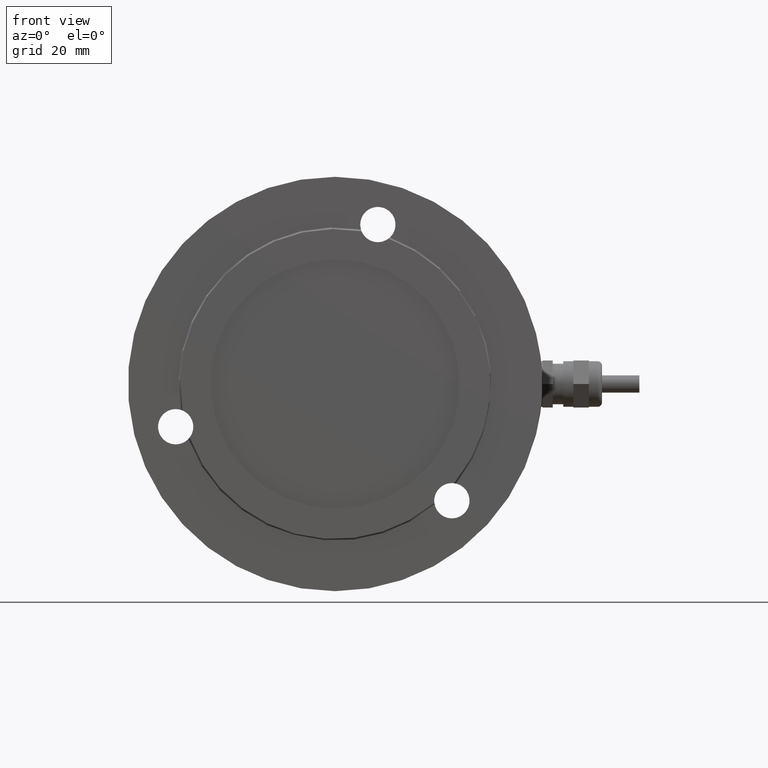
[diagram: clean part render]
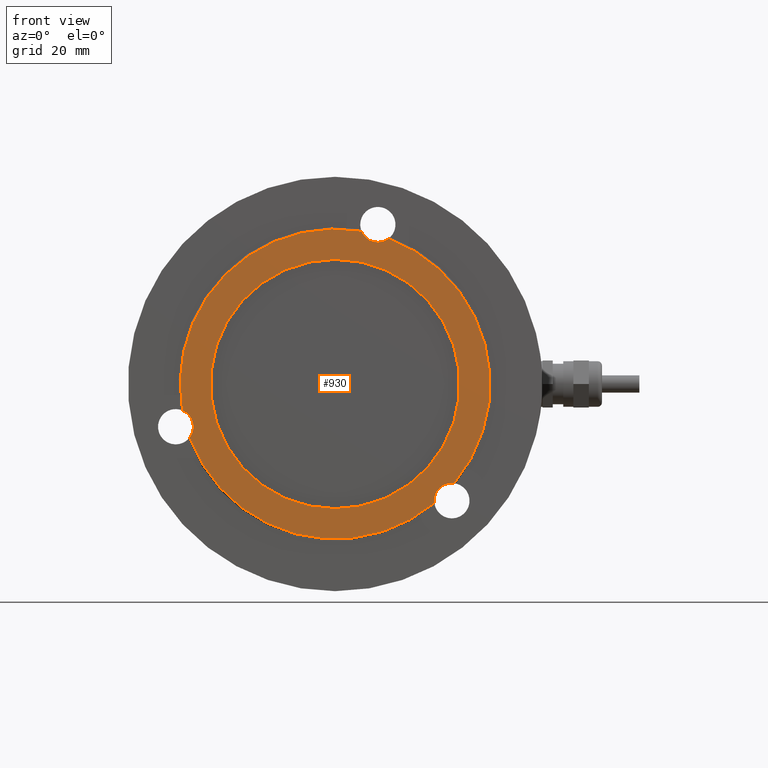
[diagram: same view with one face highlighted and labeled with its STEP entity id]
A machine part, front view. The second image highlights one B-rep face of the part: STEP entity #930.
In plain terms, the highlighted planar face has unit normal (0, -1, 0).
Its self-contained STEP definition (entity closure, byte-faithful):
#36=PLANE('',#1063);
#56=FACE_BOUND('',#172,.T.);
#114=FACE_OUTER_BOUND('',#171,.T.);
#171=EDGE_LOOP('',(#821,#822,#823,#824,#825,#826,#827));
#172=EDGE_LOOP('',(#828,#829));
#318=CIRCLE('',#983,5.25);
#320=CIRCLE('',#986,5.25);
#323=CIRCLE('',#989,5.25);
#324=CIRCLE('',#991,5.25);
#329=CIRCLE('',#997,46.);
#337=CIRCLE('',#1007,37.);
#338=CIRCLE('',#1008,37.);
#365=CIRCLE('',#1064,46.);
#366=CIRCLE('',#1065,46.);
#396=VERTEX_POINT('',#1476);
#397=VERTEX_POINT('',#1489);
#400=VERTEX_POINT('',#1507);
#401=VERTEX_POINT('',#1520);
#404=VERTEX_POINT('',#1527);
#405=VERTEX_POINT('',#1542);
#406=VERTEX_POINT('',#1543);
#418=VERTEX_POINT('',#1597);
#419=VERTEX_POINT('',#1599);
#502=EDGE_CURVE('',#397,#396,#318,.T.);
#506=EDGE_CURVE('',#401,#400,#320,.T.);
#510=EDGE_CURVE('',#404,#401,#323,.T.);
#512=EDGE_CURVE('',#405,#406,#324,.T.);
#520=EDGE_CURVE('',#396,#405,#329,.T.);
#530=EDGE_CURVE('',#418,#419,#337,.T.);
#531=EDGE_CURVE('',#419,#418,#338,.T.);
#600=EDGE_CURVE('',#406,#404,#365,.T.);
#601=EDGE_CURVE('',#400,#397,#366,.T.);
#821=ORIENTED_EDGE('',*,*,#502,.T.);
#822=ORIENTED_EDGE('',*,*,#520,.T.);
#823=ORIENTED_EDGE('',*,*,#512,.T.);
#824=ORIENTED_EDGE('',*,*,#600,.T.);
#825=ORIENTED_EDGE('',*,*,#510,.T.);
#826=ORIENTED_EDGE('',*,*,#506,.T.);
#827=ORIENTED_EDGE('',*,*,#601,.T.);
#828=ORIENTED_EDGE('',*,*,#531,.F.);
#829=ORIENTED_EDGE('',*,*,#530,.F.);
#930=ADVANCED_FACE('',(#114,#56),#36,.T.);
#983=AXIS2_PLACEMENT_3D('',#1490,#1144,#1145);
#986=AXIS2_PLACEMENT_3D('',#1521,#1150,#1151);
#989=AXIS2_PLACEMENT_3D('',#1528,#1157,#1158);
#991=AXIS2_PLACEMENT_3D('',#1544,#1161,#1162);
#997=AXIS2_PLACEMENT_3D('',#1580,#1174,#1175);
#1007=AXIS2_PLACEMENT_3D('',#1600,#1196,#1197);
#1008=AXIS2_PLACEMENT_3D('',#1601,#1198,#1199);
#1063=AXIS2_PLACEMENT_3D('',#1774,#1350,#1351);
#1064=AXIS2_PLACEMENT_3D('',#1775,#1352,#1353);
#1065=AXIS2_PLACEMENT_3D('',#1776,#1354,#1355);
#1144=DIRECTION('center_axis',(0.,1.,0.));
#1145=DIRECTION('ref_axis',(0.,0.,1.));
#1150=DIRECTION('center_axis',(0.,1.,0.));
#1151=DIRECTION('ref_axis',(0.,0.,1.));
#1157=DIRECTION('center_axis',(0.,1.,0.));
#1158=DIRECTION('ref_axis',(0.,0.,1.));
#1161=DIRECTION('center_axis',(0.,1.,0.));
#1162=DIRECTION('ref_axis',(0.,0.,1.));
#1174=DIRECTION('center_axis',(0.,-1.,0.));
#1175=DIRECTION('ref_axis',(0.,0.,-1.));
#1196=DIRECTION('center_axis',(0.,-1.,0.));
#1197=DIRECTION('ref_axis',(0.,0.,-1.));
#1198=DIRECTION('center_axis',(0.,-1.,0.));
#1199=DIRECTION('ref_axis',(0.,0.,-1.));
#1350=DIRECTION('center_axis',(0.,-1.,0.));
#1351=DIRECTION('ref_axis',(0.,0.,-1.));
#1352=DIRECTION('center_axis',(0.,-1.,0.));
#1353=DIRECTION('ref_axis',(0.,0.,-1.));
#1354=DIRECTION('center_axis',(0.,-1.,0.));
#1355=DIRECTION('ref_axis',(0.,0.,-1.));
#1476=CARTESIAN_POINT('',(-43.1703148518028,0.,-15.884706972312));
#1489=CARTESIAN_POINT('',(-45.3289428371904,0.,-7.82859765620411));
#1490=CARTESIAN_POINT('Origin',(-47.3303654881639,0.,-12.6821332100216));
#1507=CARTESIAN_POINT('',(7.82859765620867,0.,45.3289428371896));
#1520=CARTESIAN_POINT('',(12.6821332100254,0.,42.0803654881648));
#1521=CARTESIAN_POINT('Origin',(12.6821332100254,0.,47.3303654881648));
#1527=CARTESIAN_POINT('',(15.8847069723138,0.,43.1703148518021));
#1528=CARTESIAN_POINT('Origin',(12.6821332100254,0.,47.3303654881648));
#1542=CARTESIAN_POINT('',(29.444235864877,0.,-35.3417171955961));
#1543=CARTESIAN_POINT('',(35.341717195596,0.,-29.4442358648771));
#1544=CARTESIAN_POINT('Origin',(34.6482322781408,0.,-34.6482322781409));
#1580=CARTESIAN_POINT('Origin',(0.,0.,0.));
#1597=CARTESIAN_POINT('',(-4.53119315684521E-15,0.,37.));
#1599=CARTESIAN_POINT('',(0.,0.,-37.));
#1600=CARTESIAN_POINT('Origin',(0.,0.,0.));
#1601=CARTESIAN_POINT('Origin',(0.,0.,0.));
#1774=CARTESIAN_POINT('Origin',(37.,0.,0.));
#1775=CARTESIAN_POINT('Origin',(0.,0.,0.));
#1776=CARTESIAN_POINT('Origin',(0.,0.,0.));